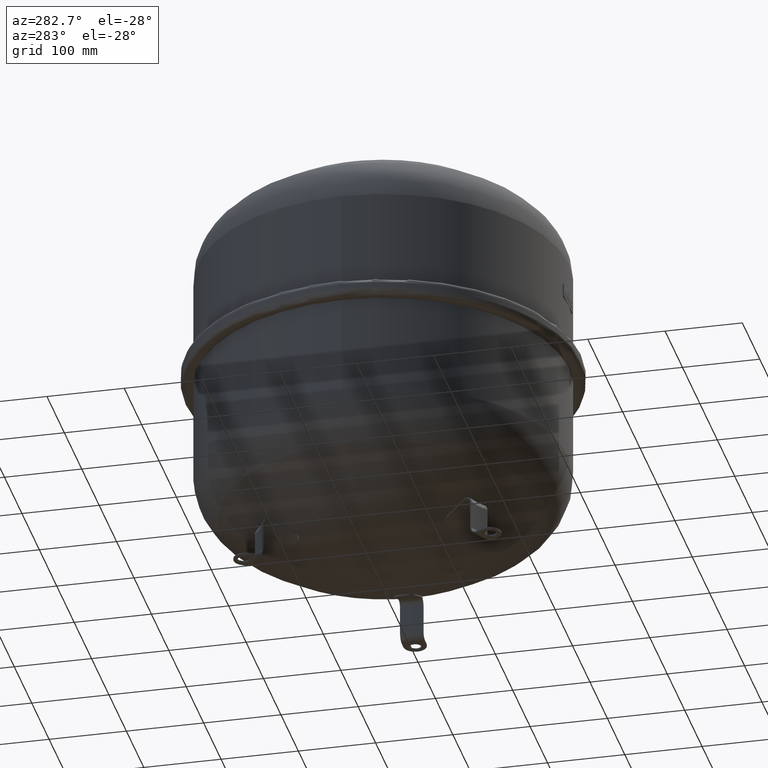
[diagram: clean part render]
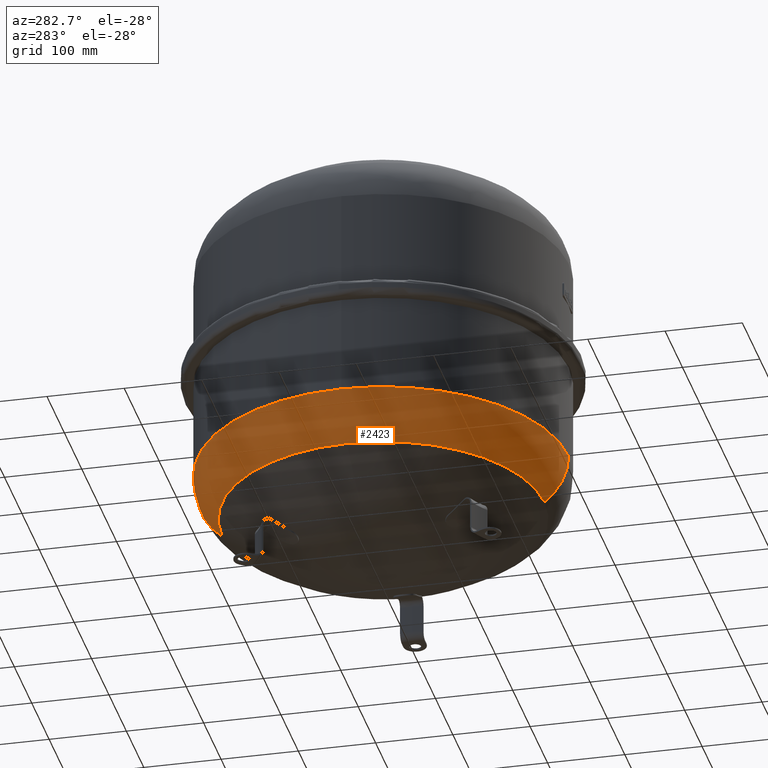
[diagram: same view with one face highlighted and labeled with its STEP entity id]
A machine part, auxiliary view. The second image highlights one B-rep face of the part: STEP entity #2423.
In plain terms, the highlighted toroidal blend (fillet) surface has major radius 163.5 mm and minor (blend) radius 76.5 mm.
Its self-contained STEP definition (entity closure, byte-faithful):
#2328=CARTESIAN_POINT('',(-240.00000000000006,-2.384045E-014,148.78135670734244));
#2329=VERTEX_POINT('',#2328);
#2353=CARTESIAN_POINT('',(-2.939055E-014,240.00000000000003,148.7813567073425));
#2354=VERTEX_POINT('',#2353);
#2362=CARTESIAN_POINT('',(0.0,-2.384045E-014,148.78135670734244));
#2363=DIRECTION('',(0.0,0.0,1.0));
#2364=DIRECTION('',(-1.0,0.0,0.0));
#2365=AXIS2_PLACEMENT_3D('',#2362,#2363,#2364);
#2366=CIRCLE('',#2365,240.00000000000006);
#2367=EDGE_CURVE('',#2354,#2329,#2366,.T.);
#2372=CARTESIAN_POINT('',(0.0,-2.384045E-014,148.78135670734247));
#2373=DIRECTION('',(0.0,-1.836970E-016,1.0));
#2374=DIRECTION('',(0.0,-1.0,0.0));
#2375=AXIS2_PLACEMENT_3D('',#2372,#2373,#2374);
#2376=TOROIDAL_SURFACE('',#2375,163.5,76.5);
#2377=CARTESIAN_POINT('',(0.0,-240.00000000000009,148.78135670734238));
#2378=VERTEX_POINT('',#2377);
#2379=CARTESIAN_POINT('',(0.0,-208.57297297297296,86.969730718555795));
#2380=VERTEX_POINT('',#2379);
#2381=CARTESIAN_POINT('',(0.0,-163.50000000000003,148.78135670734244));
#2382=DIRECTION('',(1.0,0.0,0.0));
#2383=DIRECTION('',(0.0,-1.0,0.0));
#2384=AXIS2_PLACEMENT_3D('',#2381,#2382,#2383);
#2385=CIRCLE('',#2384,76.5);
#2386=EDGE_CURVE('',#2378,#2380,#2385,.T.);
#2387=ORIENTED_EDGE('',*,*,#2386,.F.);
#2388=CARTESIAN_POINT('',(0.0,-2.384045E-014,148.78135670734244));
#2389=DIRECTION('',(0.0,0.0,1.0));
#2390=DIRECTION('',(-1.0,0.0,0.0));
#2391=AXIS2_PLACEMENT_3D('',#2388,#2389,#2390);
#2392=CIRCLE('',#2391,240.00000000000006);
#2393=EDGE_CURVE('',#2329,#2378,#2392,.T.);
#2394=ORIENTED_EDGE('',*,*,#2393,.F.);
#2395=ORIENTED_EDGE('',*,*,#2367,.F.);
#2396=CARTESIAN_POINT('',(-2.554198E-014,208.57297297297296,86.96973071855588));
#2397=VERTEX_POINT('',#2396);
#2398=CARTESIAN_POINT('',(-2.002231E-014,163.49999999999997,148.7813567073425));
#2399=DIRECTION('',(-1.0,0.0,0.0));
#2400=DIRECTION('',(0.0,1.0,0.0));
#2401=AXIS2_PLACEMENT_3D('',#2398,#2399,#2400);
#2402=CIRCLE('',#2401,76.5);
#2403=EDGE_CURVE('',#2354,#2397,#2402,.T.);
#2404=ORIENTED_EDGE('',*,*,#2403,.T.);
#2405=CARTESIAN_POINT('',(-208.57297297297296,-1.248584E-014,86.969730718555837));
#2406=VERTEX_POINT('',#2405);
#2407=CARTESIAN_POINT('',(0.0,-1.248584E-014,86.969730718555837));
#2408=DIRECTION('',(0.0,0.0,1.0));
#2409=DIRECTION('',(-1.0,0.0,0.0));
#2410=AXIS2_PLACEMENT_3D('',#2407,#2408,#2409);
#2411=CIRCLE('',#2410,208.57297297297296);
#2412=EDGE_CURVE('',#2397,#2406,#2411,.T.);
#2413=ORIENTED_EDGE('',*,*,#2412,.T.);
#2414=CARTESIAN_POINT('',(0.0,-1.248584E-014,86.969730718555837));
#2415=DIRECTION('',(0.0,0.0,1.0));
#2416=DIRECTION('',(-1.0,0.0,0.0));
#2417=AXIS2_PLACEMENT_3D('',#2414,#2415,#2416);
#2418=CIRCLE('',#2417,208.57297297297296);
#2419=EDGE_CURVE('',#2406,#2380,#2418,.T.);
#2420=ORIENTED_EDGE('',*,*,#2419,.T.);
#2421=EDGE_LOOP('',(#2387,#2394,#2395,#2404,#2413,#2420));
#2422=FACE_OUTER_BOUND('',#2421,.T.);
#2423=ADVANCED_FACE('',(#2422),#2376,.T.);